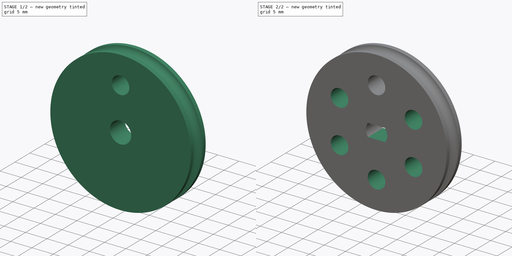
[diagram: build sequence overview — one tinted view per stage of 2, left to right]
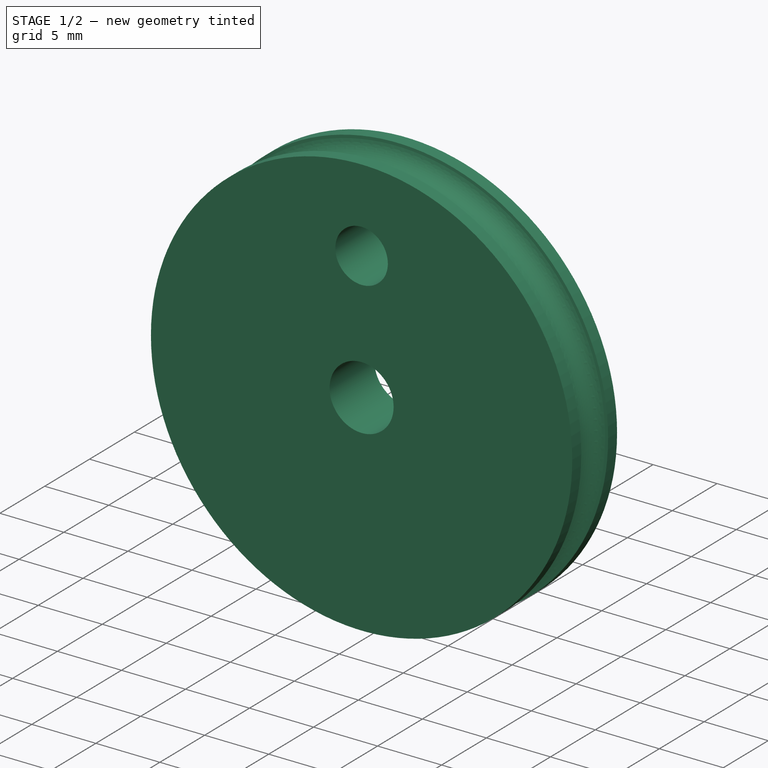
[diagram: stage 1 of 2 — iso view after this stage's code; geometry added in this stage tinted green]
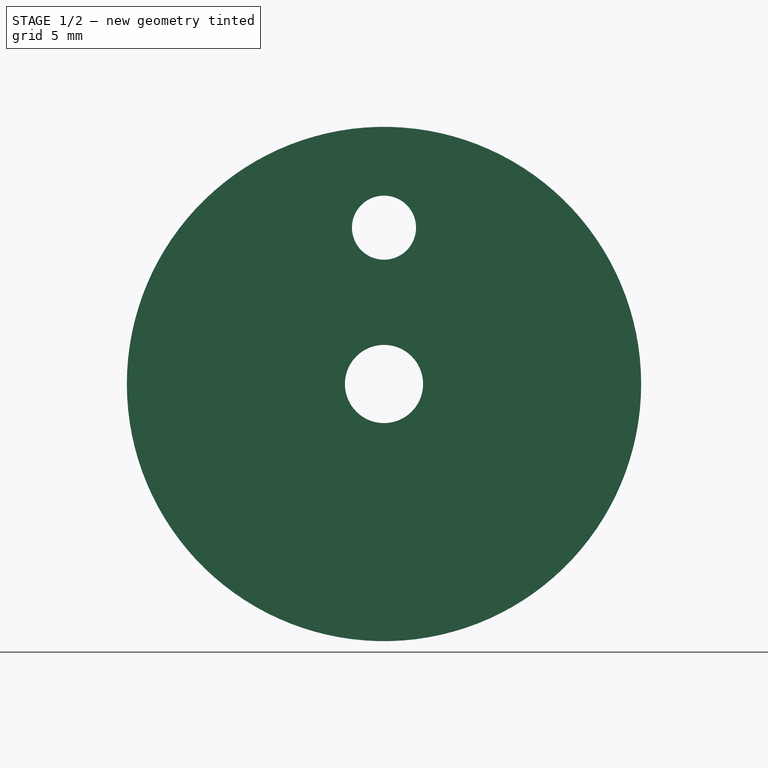
[diagram: stage 1 of 2 — front view after this stage's code; geometry added in this stage tinted green]
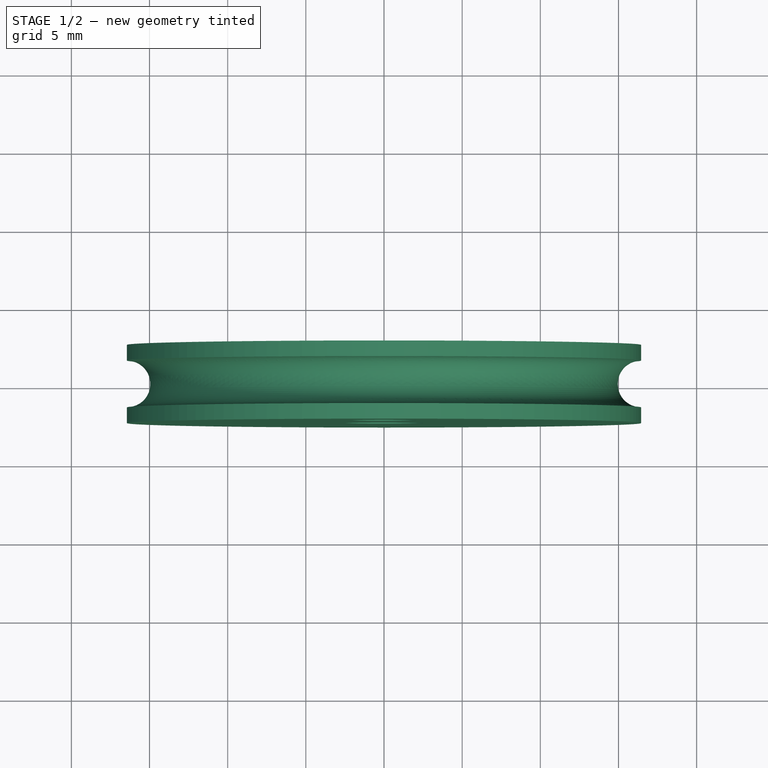
[diagram: stage 1 of 2 — top view after this stage's code; geometry added in this stage tinted green]
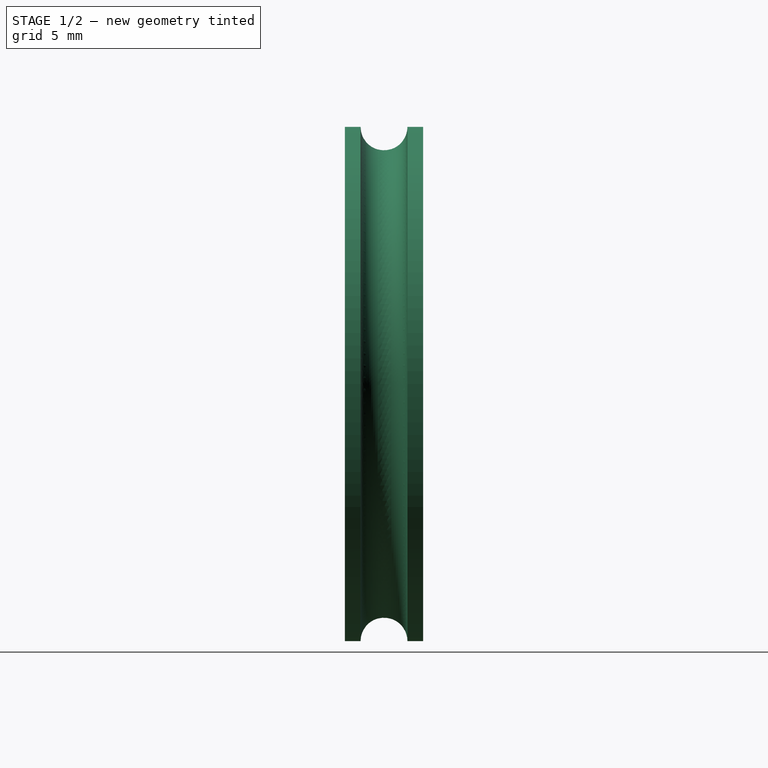
[diagram: stage 1 of 2 — right view after this stage's code; geometry added in this stage tinted green]
FCSTD DOCUMENT  (FreeCAD 0.16RUnknown)
Label: D32_stepper
License: All rights reserved
LicenseURL: http://en.wikipedia.org/wiki/All_rights_reserved
objects: Sketcher::SketchObject×3, PartDesign::Revolution×1, PartDesign::Pocket×1, PartDesign::PolarPattern×1, PartDesign::Pad×1
note: 10 computed .brp shape members not serialized (recipe doc carries the construction recipe); baked Part::Feature solids carry a one-line shape summary decoded from their .brp

FEATURE [Sketcher::SketchObject] Sketch
  sketch-geometry (6):
    g0: LineSegment StartX=-2.5 StartY=2.5 StartZ=0 EndX=-2.5 EndY=-2.5 EndZ=0
    g1: LineSegment StartX=-2.5 StartY=-2.5 StartZ=0 EndX=-16.45 EndY=-2.5 EndZ=0
    g2: LineSegment StartX=-16.45 StartY=-2.5 StartZ=0 EndX=-16.45 EndY=-1.5 EndZ=0
    g3: ArcOfCircle CenterX=-16.45 CenterY=0 CenterZ=0 NormalX=0 NormalY=0 NormalZ=1 Radius=1.5 StartAngle=4.71239 EndAngle=7.85398
    g4: LineSegment StartX=-16.45 StartY=1.5 StartZ=0 EndX=-16.45 EndY=2.5 EndZ=0
    g5: LineSegment StartX=-16.45 StartY=2.5 StartZ=0 EndX=-2.5 EndY=2.5 EndZ=0
  constraints (19):
    c: Vertical(g0)
    c: Coincident(g0,g1)
    c: Horizontal(g1)
    c: Coincident(g1,g2)
    c: Coincident(g3,g2)
    c: Coincident(g3,g4)
    c: Coincident(g4,g5)
    c: Coincident(g5,g0)
    c: Horizontal(g5)
    c: Vertical(g2)
    c: Perpendicular(g3,g4)
    c: Perpendicular(g3,g2)
    c: Symmetric(g0,g0,g-1)
    c: Vertical(g4)
    c: Symmetric(g2,g3,g-1)
    c: DistanceX(g0) = -2.5
    c: DistanceY(g0,g0) = 5
    c: DistanceX(g4,g0) = 13.95
    c: DistanceY(g3,g4) = 1
FEATURE [PartDesign::Revolution] Revolution
  Angle = 360
  Axis = (0,1,0)
  Base = (0,0,0)
  ReferenceAxis = -> Sketch [V_Axis]
  Sketch = -> Sketch
FEATURE [Sketcher::SketchObject] Sketch001
  Placement = pos=(0,-2.5,0) rot=(1,0,0;1.5708rad)
  Support = -> Revolution [Face2]
  sketch-geometry (1):
    g0: Circle CenterX=0 CenterY=10 CenterZ=0 NormalX=0 NormalY=0 NormalZ=1 Radius=2.05
  constraints (3):
    c: Radius(g0) = 2.05
    c: DistanceX(g0) = 0
    c: DistanceY(g0) = 10
FEATURE [PartDesign::Pocket] Pocket
  Length = 5
  Sketch = -> Sketch001
  Type = 1
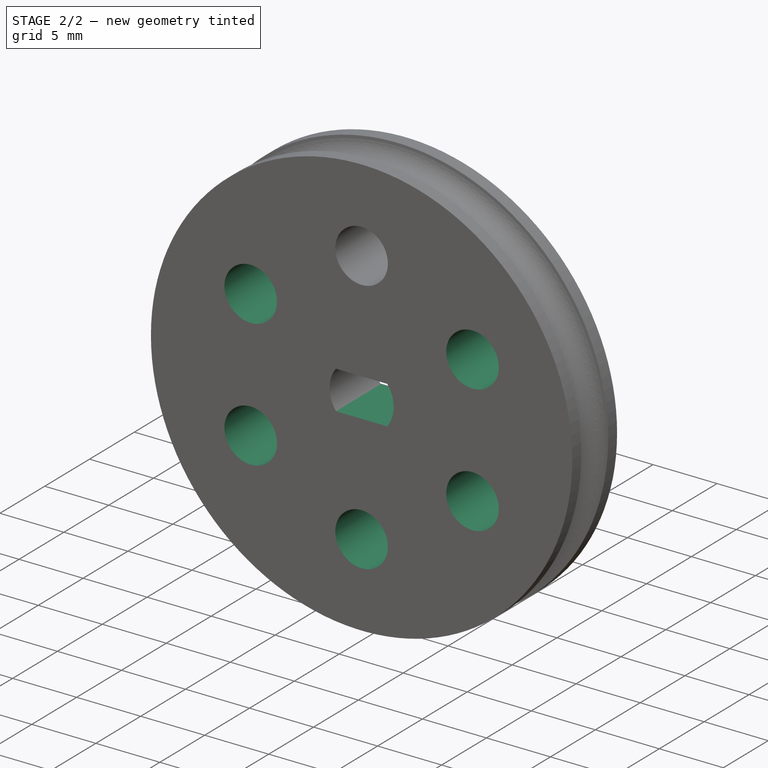
[diagram: stage 2 of 2 — iso view after this stage's code; geometry added in this stage tinted green]
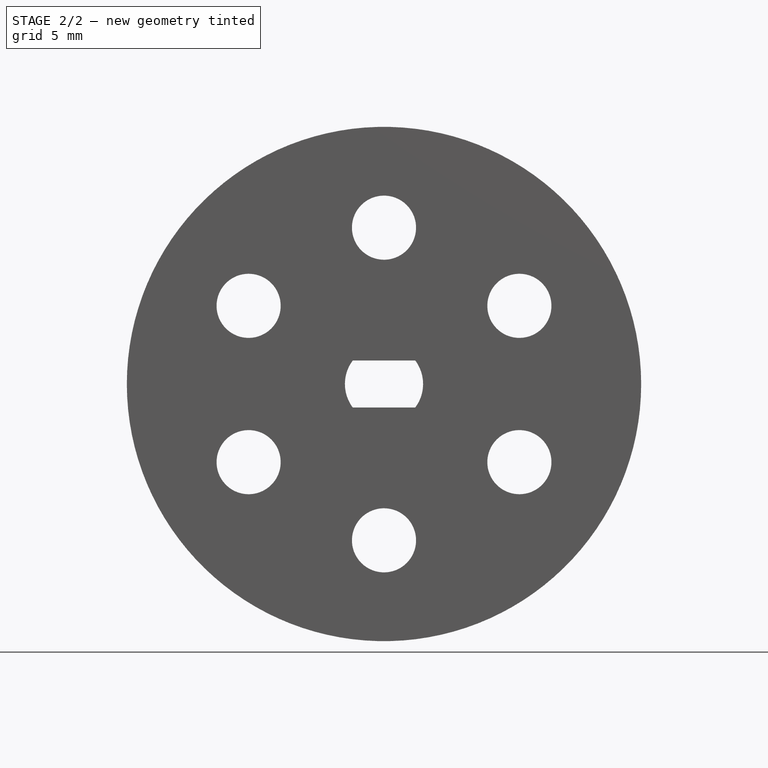
[diagram: stage 2 of 2 — front view after this stage's code; geometry added in this stage tinted green]
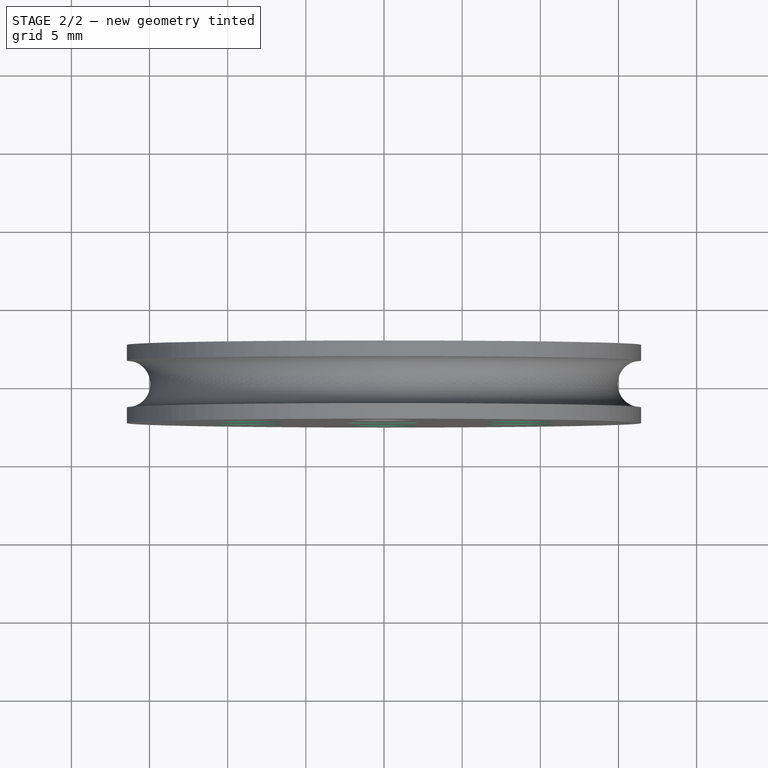
[diagram: stage 2 of 2 — top view after this stage's code; geometry added in this stage tinted green]
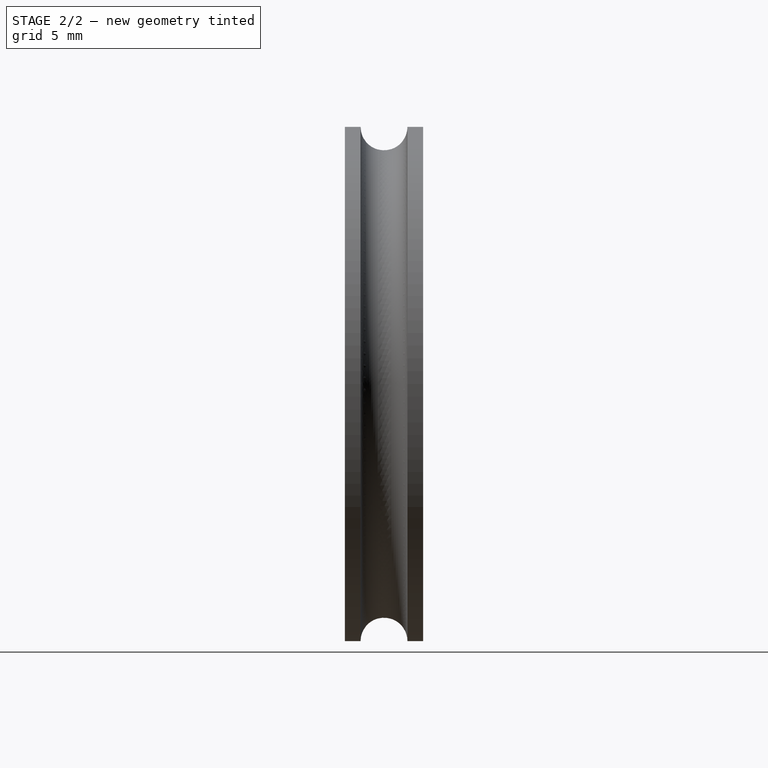
[diagram: stage 2 of 2 — right view after this stage's code; geometry added in this stage tinted green]
FEATURE [PartDesign::PolarPattern] PolarPattern
  Angle = 360
  Axis = -> Sketch001 [N_Axis]
  Occurrences = 6
  Originals = -> [Pocket]
FEATURE [Sketcher::SketchObject] Sketch002
  Placement = pos=(0,-2.5,0) rot=(1,0,0;1.5708rad)
  Support = -> PolarPattern [Face3]
  sketch-geometry (4):
    g0: LineSegment StartX=-2 StartY=1.5 StartZ=0 EndX=2 EndY=1.5 EndZ=0
    g1: LineSegment StartX=2 StartY=-1.5 StartZ=0 EndX=-2 EndY=-1.5 EndZ=0
    g2: ArcOfCircle CenterX=0 CenterY=0 CenterZ=0 NormalX=0 NormalY=0 NormalZ=1 Radius=2.5 StartAngle=0.643501 EndAngle=2.49809
    g3: ArcOfCircle CenterX=0 CenterY=0 CenterZ=0 NormalX=0 NormalY=0 NormalZ=1 Radius=2.5 StartAngle=3.78509 EndAngle=5.63968
  constraints (12):
    c: Horizontal(g1)
    c: Horizontal(g0)
    c: DistanceY(g-1,g0) = 1.5
    c: DistanceY(g1,g-1) = 1.5
    c: Coincident(g2,g-1)
    c: Coincident(g2,g0)
    c: Coincident(g2,g0)
    c: Coincident(g3,g-1)
    c: Coincident(g3,g1)
    c: Coincident(g3,g1)
    c: Radius(g2) = 2.5
    c: Radius(g3) = 2.5
FEATURE [PartDesign::Pad] Pad
  Length = 5
  Length2 = 100
  Reversed = true
  Sketch = -> Sketch002
  Type = 0
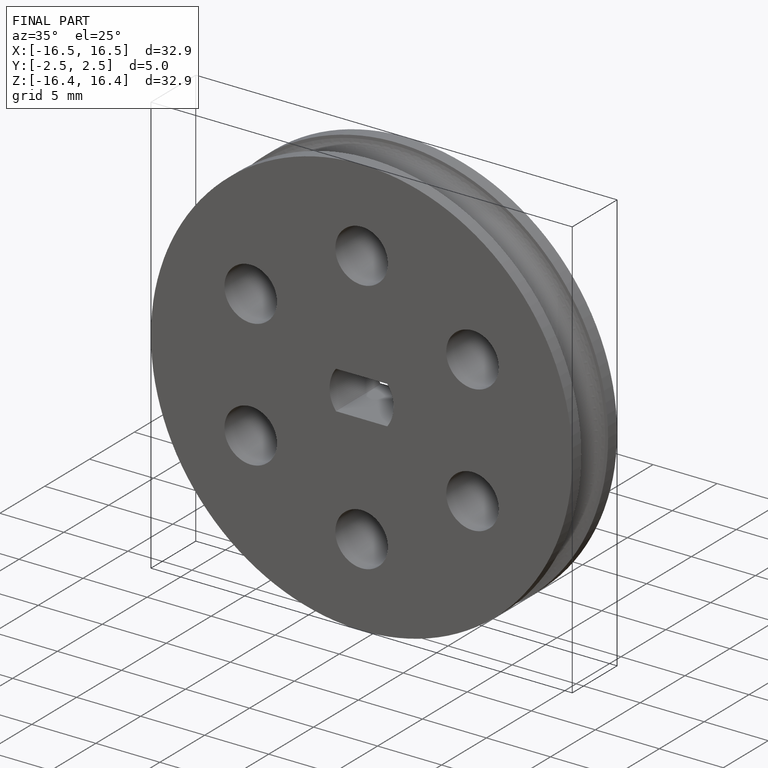
[diagram: finished part — iso view with bounding-box wireframe]
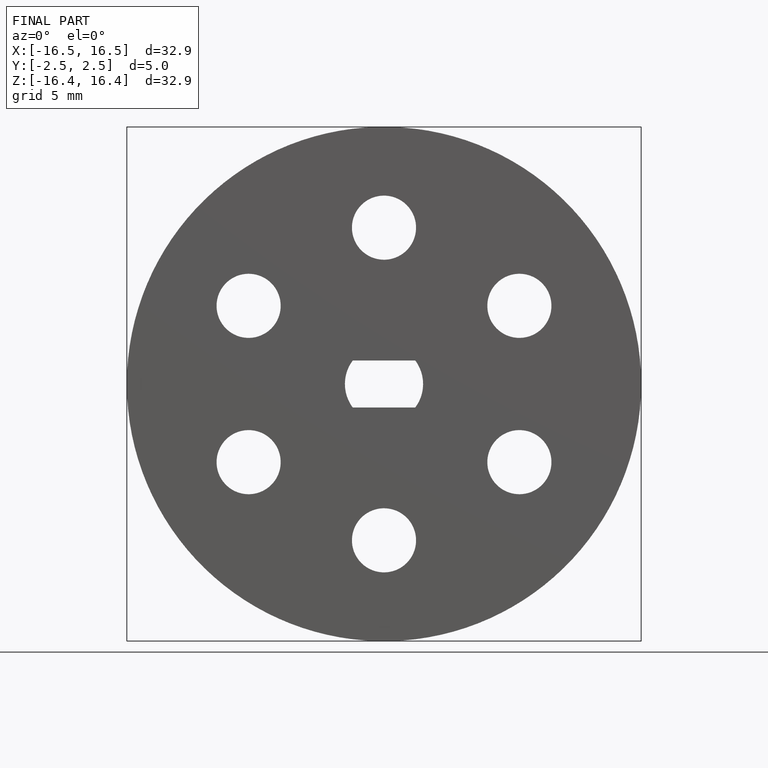
[diagram: finished part — front view with bounding-box wireframe]
